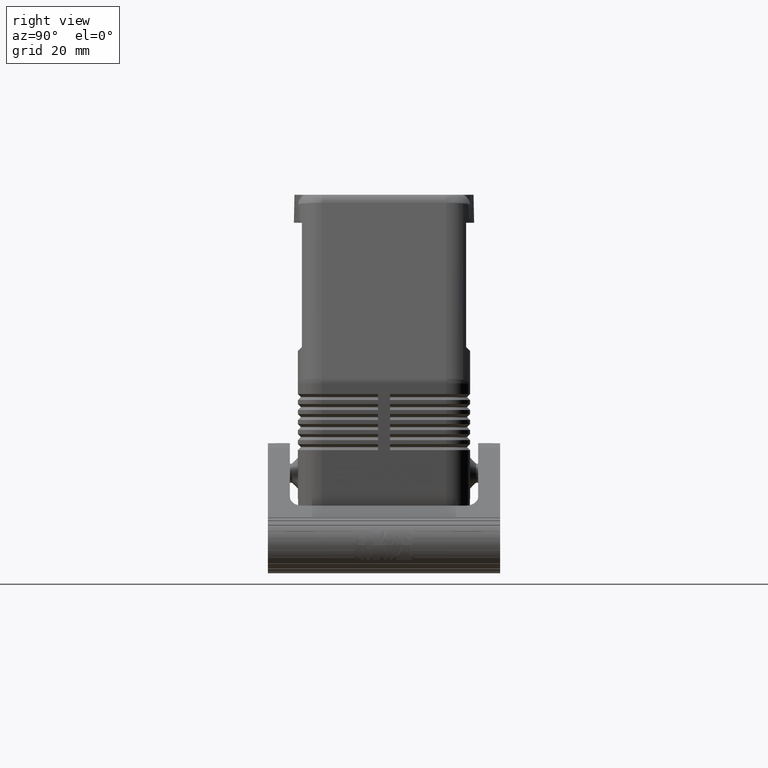
[diagram: clean part render]
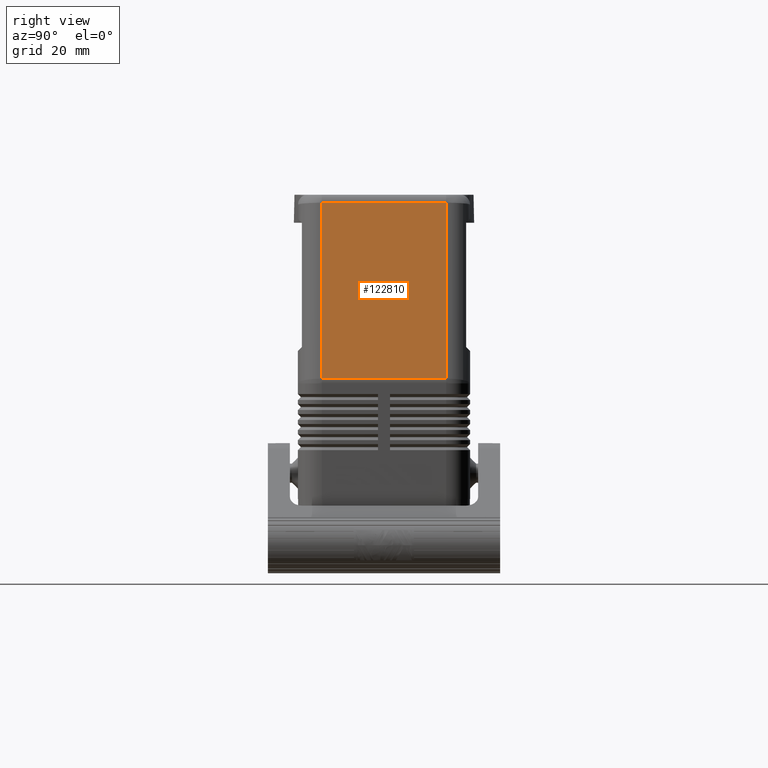
[diagram: same view with one face highlighted and labeled with its STEP entity id]
A machine part, right view. The second image highlights one B-rep face of the part: STEP entity #122810.
In plain terms, the highlighted planar face has unit normal (0.9798, 0, 0.2002).
Its self-contained STEP definition (entity closure, byte-faithful):
#28010=CARTESIAN_POINT('',(59.8785714815512,-15.5,35.0943606429336));
#28020=DIRECTION('',(-0.200166412454252,0.,0.979761913591865));
#28030=VECTOR('',#28020,44.8129844394949);
#28040=LINE('',#28010,#28030);
#28050=CARTESIAN_POINT('',(59.8785714815512,-15.5,35.0943606429336));
#28060=VERTEX_POINT('',#28050);
#28070=CARTESIAN_POINT('',(50.9085171549293,-15.5,79.0004160311356));
#28080=VERTEX_POINT('',#28070);
#28090=EDGE_CURVE('',#28060,#28080,#28040,.T.);
#112480=CARTESIAN_POINT('',(50.9085171549293,15.5,79.0004160311356));
#112490=VERTEX_POINT('',#112480);
#122060=CARTESIAN_POINT('',(59.8785714815512,15.5,35.0943606429336));
#122070=VERTEX_POINT('',#122060);
#122360=CARTESIAN_POINT('',(59.8785714815512,15.5,35.0943606429336));
#122370=DIRECTION('',(0.,-1.,0.));
#122380=VECTOR('',#122370,31.);
#122390=LINE('',#122360,#122380);
#122400=EDGE_CURVE('',#122070,#28060,#122390,.T.);
#122600=CARTESIAN_POINT('',(60.,0.,34.5));
#122610=DIRECTION('',(0.979761913591866,-0.,0.200166412454252));
#122620=DIRECTION('',(0.200166412454252,0.,-0.979761913591866));
#122630=AXIS2_PLACEMENT_3D('',#122600,#122610,#122620);
#122640=PLANE('',#122630);
#122650=ORIENTED_EDGE('',*,*,#122400,.F.);
#122660=ORIENTED_EDGE('',*,*,#28090,.F.);
#122670=CARTESIAN_POINT('',(50.9085171549293,-15.5,79.0004160311356));
#122680=DIRECTION('',(0.,1.,0.));
#122690=VECTOR('',#122680,31.);
#122700=LINE('',#122670,#122690);
#122710=EDGE_CURVE('',#28080,#112490,#122700,.T.);
#122720=ORIENTED_EDGE('',*,*,#122710,.F.);
#122730=CARTESIAN_POINT('',(50.9085171549293,15.5,79.0004160311356));
#122740=DIRECTION('',(0.200166412454252,0.,-0.979761913591865));
#122750=VECTOR('',#122740,44.8129844394949);
#122760=LINE('',#122730,#122750);
#122770=EDGE_CURVE('',#112490,#122070,#122760,.T.);
#122780=ORIENTED_EDGE('',*,*,#122770,.F.);
#122790=EDGE_LOOP('',(#122780,#122720,#122660,#122650));
#122800=FACE_OUTER_BOUND('',#122790,.T.);
#122810=ADVANCED_FACE('',(#122800),#122640,.T.);